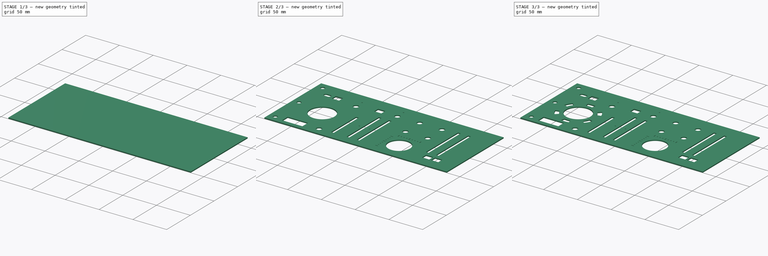
[diagram: build sequence overview — one tinted view per stage of 3, left to right]
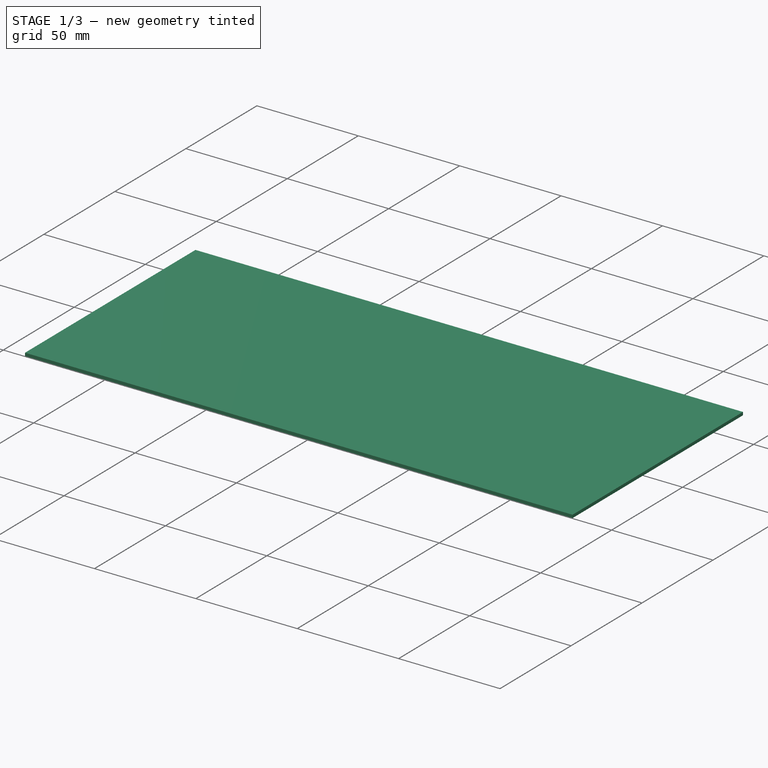
[diagram: stage 1 of 3 — iso view after this stage's code; geometry added in this stage tinted green]
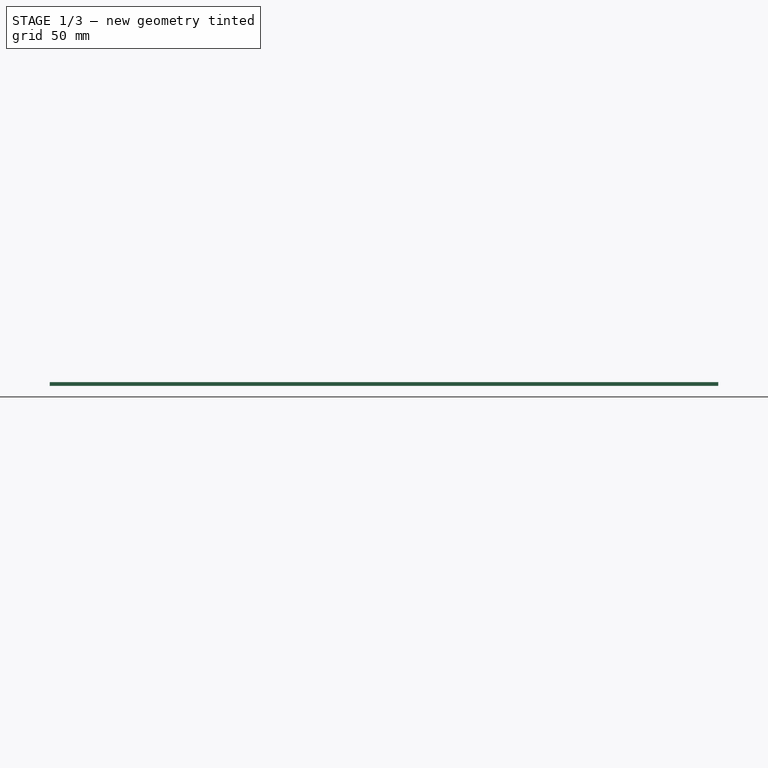
[diagram: stage 1 of 3 — front view after this stage's code; geometry added in this stage tinted green]
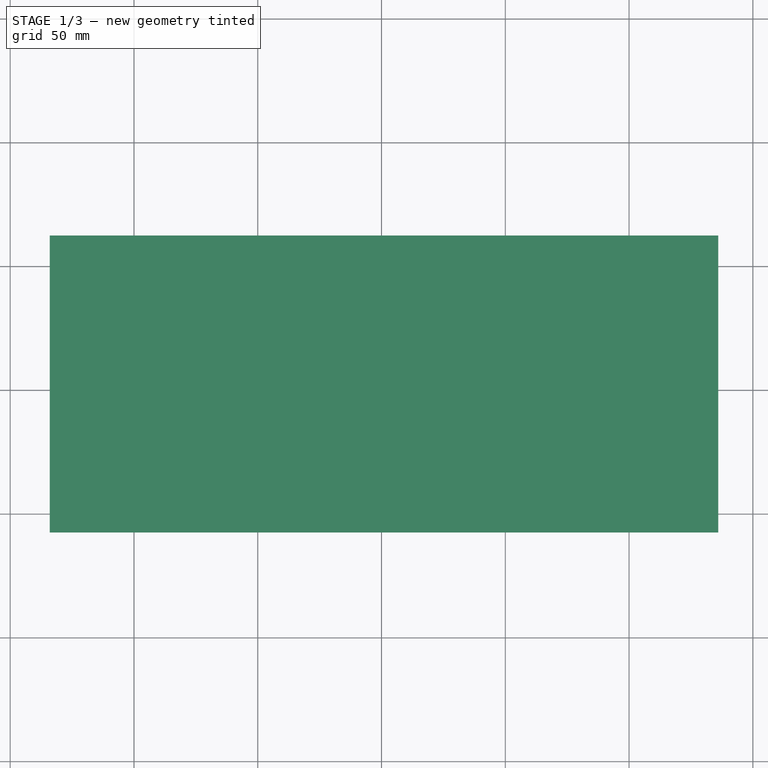
[diagram: stage 1 of 3 — top view after this stage's code; geometry added in this stage tinted green]
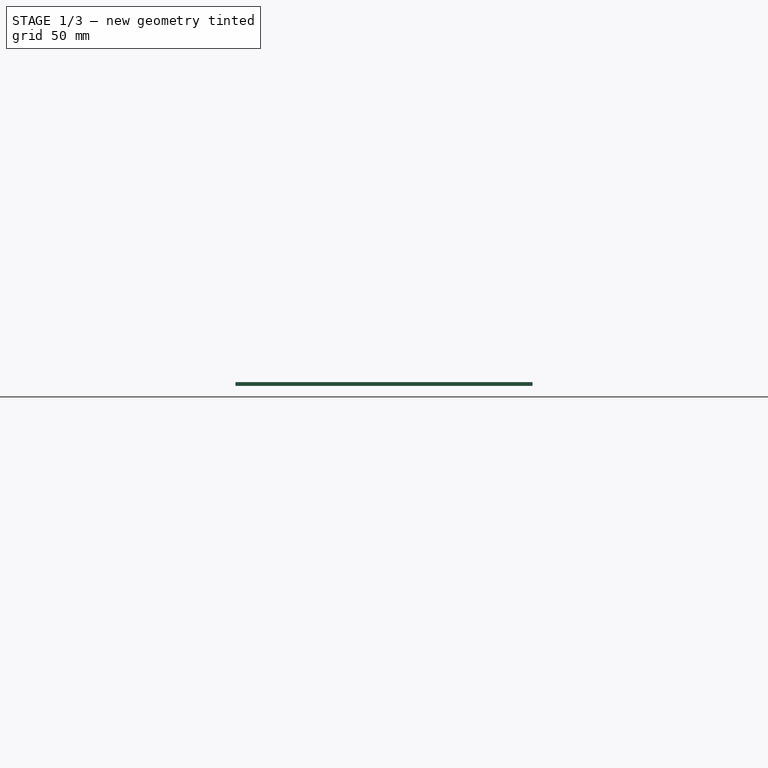
[diagram: stage 1 of 3 — right view after this stage's code; geometry added in this stage tinted green]
FCSTD DOCUMENT  (FreeCAD 0.18R16146 (Git))
Label: 2020LUM1PROGRACEV1_0
License: All rights reserved
LicenseURL: http://en.wikipedia.org/wiki/All_rights_reserved
objects: Sketcher::SketchObject×7, PartDesign::Pocket×3, PartDesign::Plane×2, PartDesign::Pad×2, PartDesign::Hole×1, PartDesign::CoordinateSystem×1, PartDesign::Line×1, PartDesign::PolarPattern×1, PartDesign::Body×1
note: 25 computed .brp shape members not serialized (recipe doc carries the construction recipe); baked Part::Feature solids carry a one-line shape summary decoded from their .brp

FEATURE [PartDesign::Plane] DatumPlane
  Length = 306
  MapMode = 2
  Placement = pos=(0,0,1.5) rot=(0,0,1;0rad)
  ResizeMode = 0
  Width = 156
FEATURE [Sketcher::SketchObject] Sketch
  MapMode = 5
  Placement = pos=(0,0,1.5) rot=(0,0,1;0rad)
  Support = -> [DatumPlane]
  sketch-geometry (4):
    g0: LineSegment StartX=-115 StartY=52.5 StartZ=0 EndX=115 EndY=52.5 EndZ=0
    g1: LineSegment StartX=115 StartY=52.5 StartZ=0 EndX=115 EndY=-52.5 EndZ=0
    g2: LineSegment StartX=115 StartY=-52.5 StartZ=0 EndX=-115 EndY=-52.5 EndZ=0
    g3: LineSegment StartX=-115 StartY=-52.5 StartZ=0 EndX=-115 EndY=52.5 EndZ=0
  constraints (11):
    c: Coincident(g0,g1)
    c: Coincident(g1,g2)
    c: Coincident(g2,g3)
    c: Coincident(g3,g0)
    c: Horizontal(g0)
    c: Horizontal(g2)
    c: Vertical(g1)
    c: Vertical(g3)
    c: DistanceY(g1,g1) = 105
    c: DistanceX(g0,g0) = 230
    c: Symmetric(g0,g1,g-1)
FEATURE [PartDesign::Pad] Pad  label="Platine"
  Length = 1.5
  Length2 = 100
  Placement = pos=(0,0,1.5) rot=(0,0,1;0rad)
  Profile = -> Sketch
  Reversed = true
  Type = 0
FEATURE [Sketcher::SketchObject] Sketch001
  ExternalGeometry = -> [Pad]
  MapMode = 5
  Support = -> [XY_Plane]
  sketch-geometry (4):
    g0: LineSegment StartX=-134 StartY=62.5 StartZ=0 EndX=136 EndY=62.5 EndZ=0
    g1: LineSegment StartX=136 StartY=62.5 StartZ=0 EndX=136 EndY=-57.5 EndZ=0
    g2: LineSegment StartX=136 StartY=-57.5 StartZ=0 EndX=-134 EndY=-57.5 EndZ=0
    g3: LineSegment StartX=-134 StartY=-57.5 StartZ=0 EndX=-134 EndY=62.5 EndZ=0
  constraints (11):
    c: Coincident(g0,g1)
    c: Coincident(g1,g2)
    c: Coincident(g2,g3)
    c: Coincident(g3,g0)
    c: Horizontal(g0)
    c: Horizontal(g2)
    c: Vertical(g1)
    c: Vertical(g3)
    c: DistanceX(g0,g-3) = 19
    c: DistanceX(g-3,g0) = 21
    c: DistanceY(g2,g-4) = 5
FEATURE [PartDesign::Pad] Pad001  label="Blech_plain"
  BaseFeature = -> Pad
  Length = 1.5
  Length2 = 100
  Placement = pos=(0,0,1.5) rot=(0,0,1;0rad)
  Profile = -> Sketch001
  Type = 0
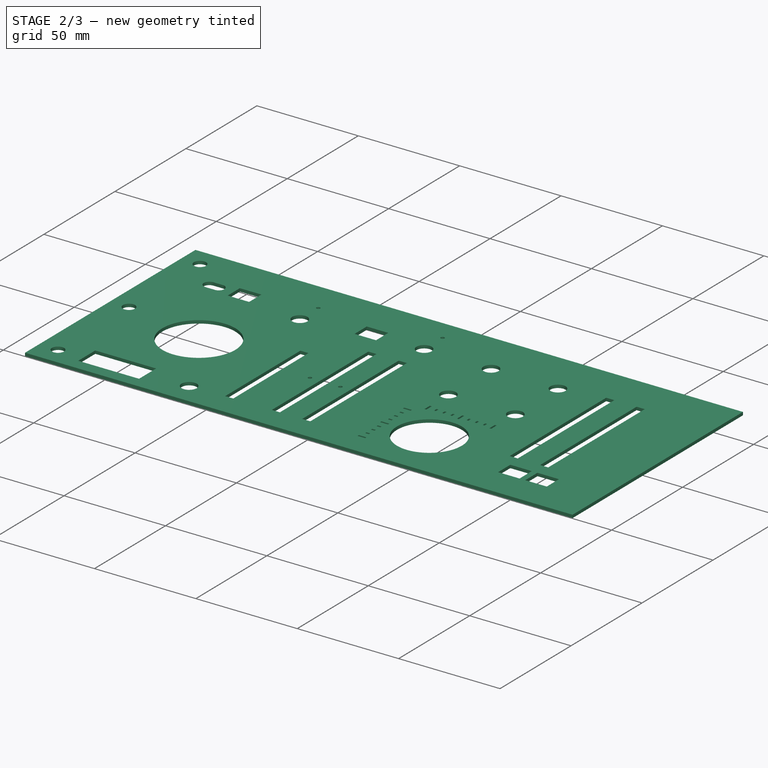
[diagram: stage 2 of 3 — iso view after this stage's code; geometry added in this stage tinted green]
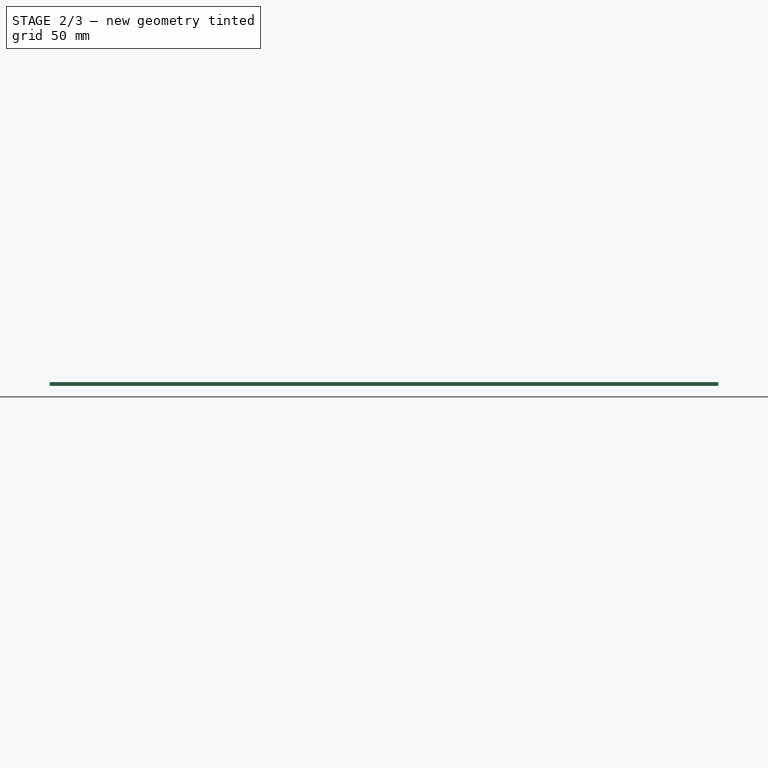
[diagram: stage 2 of 3 — front view after this stage's code; geometry added in this stage tinted green]
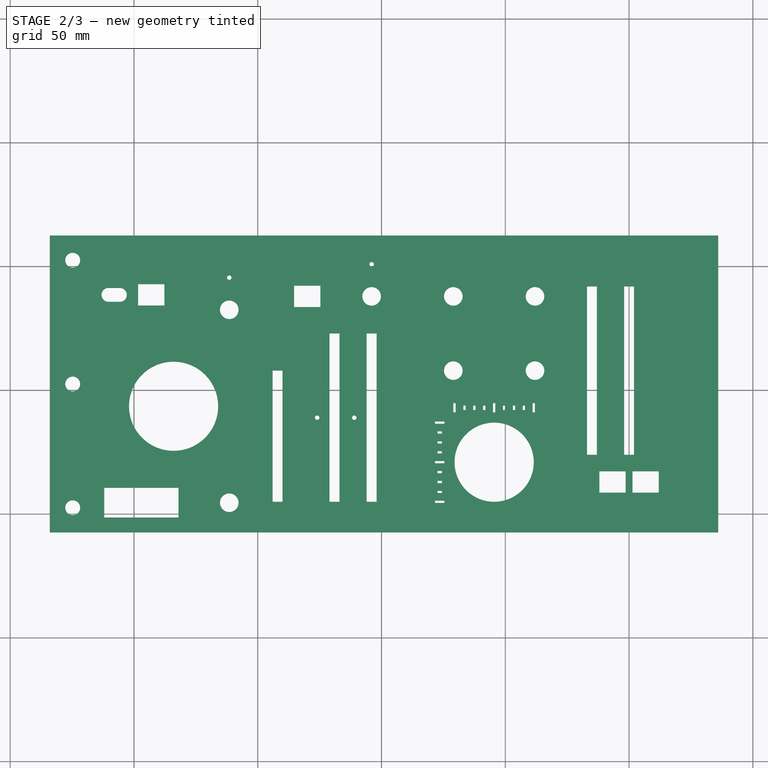
[diagram: stage 2 of 3 — top view after this stage's code; geometry added in this stage tinted green]
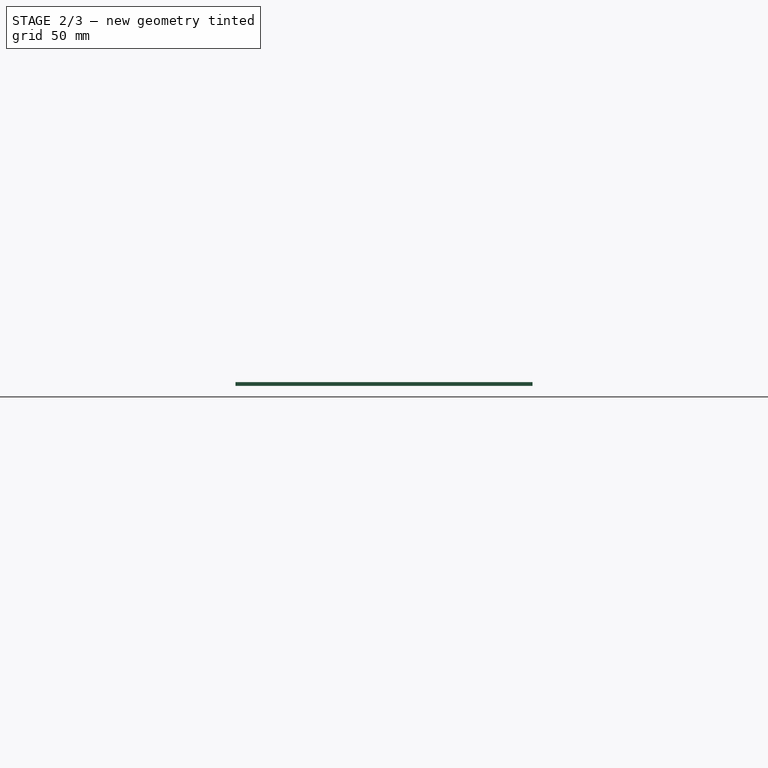
[diagram: stage 2 of 3 — right view after this stage's code; geometry added in this stage tinted green]
FEATURE [Sketcher::SketchObject] Sketch002
  ExternalGeometry = -> [Pad001]
  MapMode = 5
  Placement = pos=(0,0,1.5) rot=(0,0,1;0rad)
  Support = -> [Pad001]
  sketch-geometry (14):
    g0: Circle CenterX=-124.75 CenterY=52.5 CenterZ=0 NormalX=0 NormalY=0 NormalZ=1 AngleXU=0 Radius=3.25
    g1: Circle CenterX=-124.75 CenterY=2.5 CenterZ=0 NormalX=0 NormalY=0 NormalZ=1 AngleXU=0 Radius=3.25
    g2: Circle CenterX=-124.75 CenterY=-47.5 CenterZ=0 NormalX=0 NormalY=0 NormalZ=1 AngleXU=0 Radius=3.25
    g3: Circle CenterX=145.25 CenterY=52.5 CenterZ=0 NormalX=0 NormalY=0 NormalZ=1 AngleXU=0 Radius=3.25
    g4: Circle CenterX=145.25 CenterY=2.5 CenterZ=0 NormalX=0 NormalY=0 NormalZ=1 AngleXU=0 Radius=3.25
    g5: Circle CenterX=145.25 CenterY=-47.5 CenterZ=0 NormalX=0 NormalY=0 NormalZ=1 AngleXU=0 Radius=3.25
    g6: LineSegment [constr] StartX=-134 StartY=62.5 StartZ=0 EndX=-124.75 EndY=52.5 EndZ=0
    g7: LineSegment [constr] StartX=-124.75 StartY=52.5 StartZ=0 EndX=-124.75 EndY=2.5 EndZ=0
    g8: LineSegment [constr] StartX=-124.75 StartY=2.5 StartZ=0 EndX=-124.75 EndY=-47.5 EndZ=0
    g9: LineSegment [constr] StartX=-124.75 StartY=-47.5 StartZ=0 EndX=-134 EndY=-57.5 EndZ=0
    g10: LineSegment [constr] StartX=136 StartY=62.5 StartZ=0 EndX=145.25 EndY=52.5 EndZ=0
    g11: LineSegment [constr] StartX=145.25 StartY=52.5 StartZ=0 EndX=145.25 EndY=2.5 EndZ=0
    g12: LineSegment [constr] StartX=145.25 StartY=2.5 StartZ=0 EndX=145.25 EndY=-47.5 EndZ=0
    g13: LineSegment [constr] StartX=145.25 StartY=-47.5 StartZ=0 EndX=136 EndY=-57.5 EndZ=0
  constraints (34):
    c: Coincident(g6,g7)
    c: Vertical(g7)
    c: Coincident(g7,g8)
    c: Coincident(g8,g9)
    c: Coincident(g10,g11)
    c: Vertical(g11)
    c: Coincident(g11,g12)
    c: Vertical(g12)
    c: Coincident(g12,g13)
    c: Equal(g6,g9)
    c: Equal(g9,g10)
    c: Equal(g10,g13)
    c: Equal(g7,g8)
    c: Equal(g8,g11)
    c: Equal(g11,g12)
    c: Coincident(g6,g-3)
    c: Coincident(g9,g-3)
    c: Coincident(g10,g-4)
    c: Coincident(g13,g-4)
    c: Vertical(g8)
    c: Coincident(g0,g6)
    c: Coincident(g1,g7)
    c: Coincident(g2,g8)
    c: Coincident(g10,g3)
    c: Coincident(g4,g11)
    c: Coincident(g5,g12)
    c: Equal(g0,g1)
    c: Equal(g1,g2)
    c: Equal(g2,g3)
    c: Equal(g3,g4)
    c: Equal(g4,g5)
    c: Diameter(g0) = 6.5
    c: DistanceX(g6,g0) = 9.25
    c: DistanceY(g2,g0) = 100
FEATURE [PartDesign::Hole] Hole  label="Befestigungslöcher"
  BaseFeature = -> Pad001
  Depth = 25
  DepthType = 0
  Diameter = 6
  DrillPoint = 1
  DrillPointAngle = 118
  HoleCutCountersinkAngle = 90
  HoleCutDepth = 0
  HoleCutDiameter = 0
  HoleCutType = 0
  ModelActualThread = false
  Placement = pos=(0,0,1.5) rot=(0,0,1;0rad)
  Profile = -> Sketch002
  Tapered = false
  TaperedAngle = 90
  ThreadAngle = 0
  ThreadClass = 0
  ThreadCutOffInner = 0
  ThreadCutOffOuter = 0
  ThreadDirection = 0
  ThreadFit = 0
  ThreadPitch = 0
  ThreadSize = 0
  ThreadType = 0
  Threaded = false
FEATURE [Sketcher::SketchObject] Sketch003
  ExternalGeometry = -> [Hole]
  MapMode = 5
  Placement = pos=(0,0,1.5) rot=(0,0,1;0rad)
  Support = -> [Hole]
  sketch-geometry (88):
    g0: LineSegment StartX=-98.3 StartY=42.8 StartZ=0 EndX=-87.7 EndY=42.8 EndZ=0
    g1: LineSegment StartX=-87.7 StartY=42.8 StartZ=0 EndX=-87.7 EndY=34.2 EndZ=0
    g2: LineSegment StartX=-87.7 StartY=34.2 StartZ=0 EndX=-98.3 EndY=34.2 EndZ=0
    g3: LineSegment StartX=-98.3 StartY=34.2 StartZ=0 EndX=-98.3 EndY=42.8 EndZ=0
    g4: ArcOfCircle CenterX=-110.3 CenterY=38.5 CenterZ=0 NormalX=0 NormalY=0 NormalZ=1 AngleXU=0 Radius=2.8 StartAngle=1.5708 EndAngle=4.71239
    g5: ArcOfCircle CenterX=-105.7 CenterY=38.5 CenterZ=0 NormalX=0 NormalY=0 NormalZ=1 AngleXU=0 Radius=2.8 StartAngle=4.71239 EndAngle=7.85398
    g6: LineSegment StartX=-110.3 StartY=35.7 StartZ=0 EndX=-105.7 EndY=35.7 EndZ=0
    g7: LineSegment StartX=-110.3 StartY=41.3 StartZ=0 EndX=-105.7 EndY=41.3 EndZ=0
    g8: LineSegment [constr] StartX=-108 StartY=38.5 StartZ=0 EndX=-93 EndY=38.5 EndZ=0
    g9: Circle CenterX=-84 CenterY=-6.5 CenterZ=0 NormalX=0 NormalY=0 NormalZ=1 AngleXU=0 Radius=18
    g10: Circle CenterX=-61.5 CenterY=-45.4711 CenterZ=0 NormalX=0 NormalY=0 NormalZ=1 AngleXU=0 Radius=3.75
    g11: LineSegment StartX=-112 StartY=-39.4711 StartZ=0 EndX=-82 EndY=-39.4711 EndZ=0
    g12: LineSegment StartX=-82 StartY=-39.4711 StartZ=0 EndX=-82 EndY=-51.4711 EndZ=0
    g13: LineSegment StartX=-82 StartY=-51.4711 StartZ=0 EndX=-112 EndY=-51.4711 EndZ=0
    g14: LineSegment StartX=-112 StartY=-51.4711 StartZ=0 EndX=-112 EndY=-39.4711 EndZ=0
    g15: LineSegment [constr] StartX=-97 StartY=-45.4711 StartZ=0 EndX=-61.5 EndY=-45.4711 EndZ=0
    g16: LineSegment [constr] StartX=-84 StartY=-6.5 StartZ=0 EndX=-61.5 EndY=-45.4711 EndZ=0
    g17: LineSegment [constr] StartX=-84 StartY=-6.5 StartZ=0 EndX=-61.5 EndY=32.4711 EndZ=0
    g18: LineSegment [constr] StartX=-61.5 StartY=32.4711 StartZ=0 EndX=-61.5 EndY=-45.4711 EndZ=0
    g19: Circle CenterX=-61.5 CenterY=32.4711 CenterZ=0 NormalX=0 NormalY=0 NormalZ=1 AngleXU=0 Radius=3.75
    g20: Circle CenterX=-61.5 CenterY=45.4711 CenterZ=0 NormalX=0 NormalY=0 NormalZ=1 AngleXU=0 Radius=0.9
    g21: LineSegment [constr] StartX=-61.5 StartY=45.4711 StartZ=0 EndX=-61.5 EndY=32.4711 EndZ=0
    g22: LineSegment StartX=-44 StartY=7.9 StartZ=0 EndX=-40 EndY=7.9 EndZ=0
    g23: LineSegment StartX=-40 StartY=7.9 StartZ=0 EndX=-40 EndY=-45.1 EndZ=0
    g24: LineSegment StartX=-40 StartY=-45.1 StartZ=0 EndX=-44 EndY=-45.1 EndZ=0
    g25: LineSegment StartX=-44 StartY=-45.1 StartZ=0 EndX=-44 EndY=7.9 EndZ=0
    g26: LineSegment StartX=-21 StartY=22.9 StartZ=0 EndX=-17 EndY=22.9 EndZ=0
    g27: LineSegment StartX=-17 StartY=22.9 StartZ=0 EndX=-17 EndY=-45.1 EndZ=0
    g28: LineSegment StartX=-17 StartY=-45.1 StartZ=0 EndX=-21 EndY=-45.1 EndZ=0
    g29: LineSegment StartX=-21 StartY=-45.1 StartZ=0 EndX=-21 EndY=22.9 EndZ=0
    g30: LineSegment StartX=-6 StartY=22.9 StartZ=0 EndX=-2 EndY=22.9 EndZ=0
    g31: LineSegment StartX=-2 StartY=22.9 StartZ=0 EndX=-2 EndY=-45.1 EndZ=0
    g32: LineSegment StartX=-2 StartY=-45.1 StartZ=0 EndX=-6 EndY=-45.1 EndZ=0
    g33: LineSegment StartX=-6 StartY=-45.1 StartZ=0 EndX=-6 EndY=22.9 EndZ=0
    g34: LineSegment [constr] StartX=-26 StartY=-11.1 StartZ=0 EndX=-19 EndY=-11.1 EndZ=0
    g35: LineSegment [constr] StartX=-19 StartY=-11.1 StartZ=0 EndX=-11 EndY=-11.1 EndZ=0
    g36: LineSegment [constr] StartX=-11 StartY=-11.1 StartZ=0 EndX=-4 EndY=-11.1 EndZ=0
    g37: Circle CenterX=-26 CenterY=-11.1 CenterZ=0 NormalX=0 NormalY=0 NormalZ=1 AngleXU=0 Radius=0.9
    g38: Circle CenterX=-11 CenterY=-11.1 CenterZ=0 NormalX=0 NormalY=0 NormalZ=1 AngleXU=0 Radius=0.9
    g39: GeomPoint X=-42 Y=-18.6 Z=0
    g40: LineSegment [constr] StartX=-21 StartY=-45.1 StartZ=0 EndX=-40 EndY=-45.1 EndZ=0
    g41: Circle CenterX=-4 CenterY=37.9 CenterZ=0 NormalX=0 NormalY=0 NormalZ=1 AngleXU=0 Radius=3.75
    g42: GeomPoint X=-30 Y=37.9 Z=0
    g43: LineSegment StartX=-35.3 StartY=42.2 StartZ=0 EndX=-24.7 EndY=42.2 EndZ=0
    g44: LineSegment StartX=-24.7 StartY=42.2 StartZ=0 EndX=-24.7 EndY=33.6 EndZ=0
    g45: LineSegment StartX=-24.7 StartY=33.6 StartZ=0 EndX=-35.3 EndY=33.6 EndZ=0
    g46: LineSegment StartX=-35.3 StartY=33.6 StartZ=0 EndX=-35.3 EndY=42.2 EndZ=0
    g47: Circle CenterX=-4 CenterY=50.9 CenterZ=0 NormalX=0 NormalY=0 NormalZ=1 AngleXU=0 Radius=0.9
    g48: LineSegment [constr] StartX=-4 StartY=-11.1 StartZ=0 EndX=-4 EndY=37.9 EndZ=0
    g49: LineSegment [constr] StartX=-4 StartY=37.9 StartZ=0 EndX=-4 EndY=50.9 EndZ=0
    g50: LineSegment [constr] StartX=-4 StartY=37.9 StartZ=0 EndX=-30 EndY=37.9 EndZ=0
    g51: LineSegment [constr] StartX=-4 StartY=37.9 StartZ=0 EndX=29 EndY=37.9 EndZ=0
    g52: LineSegment [constr] StartX=29 StartY=37.9 StartZ=0 EndX=62 EndY=37.9 EndZ=0
    g53: LineSegment [constr] StartX=62 StartY=37.9 StartZ=0 EndX=62 EndY=7.9 EndZ=0
    g54: LineSegment [constr] StartX=62 StartY=7.9 StartZ=0 EndX=29 EndY=7.9 EndZ=0
    g55: LineSegment [constr] StartX=29 StartY=7.9 StartZ=0 EndX=29 EndY=37.9 EndZ=0
    g56: LineSegment [constr] StartX=45.5 StartY=7.9 StartZ=0 EndX=45.5 EndY=-29.1 EndZ=0
    g57: Circle CenterX=29 CenterY=37.9 CenterZ=0 NormalX=0 NormalY=0 NormalZ=1 AngleXU=0 Radius=3.75
    g58: Circle CenterX=62 CenterY=37.9 CenterZ=0 NormalX=0 NormalY=0 NormalZ=1 AngleXU=0 Radius=3.75
    g59: Circle CenterX=29 CenterY=7.9 CenterZ=0 NormalX=0 NormalY=0 NormalZ=1 AngleXU=0 Radius=3.75
    g60: Circle CenterX=62 CenterY=7.9 CenterZ=0 NormalX=0 NormalY=0 NormalZ=1 AngleXU=0 Radius=3.75
    g61: Circle CenterX=45.5 CenterY=-29.1 CenterZ=0 NormalX=0 NormalY=0 NormalZ=1 AngleXU=0 Radius=16
    g62: LineSegment StartX=83 StartY=41.9 StartZ=0 EndX=87 EndY=41.9 EndZ=0
    g63: LineSegment StartX=87 StartY=41.9 StartZ=0 EndX=87 EndY=-26.1 EndZ=0
    g64: LineSegment StartX=87 StartY=-26.1 StartZ=0 EndX=83 EndY=-26.1 EndZ=0
    g65: LineSegment StartX=83 StartY=-26.1 StartZ=0 EndX=83 EndY=41.9 EndZ=0
    g66: LineSegment StartX=98 StartY=41.9 StartZ=0 EndX=102 EndY=41.9 EndZ=0
    g67: LineSegment StartX=102 StartY=41.9 StartZ=0 EndX=102 EndY=-26.1 EndZ=0
    g68: LineSegment StartX=102 StartY=-26.1 StartZ=0 EndX=98 EndY=-26.1 EndZ=0
    g69: LineSegment StartX=98 StartY=-26.1 StartZ=0 EndX=98 EndY=41.9 EndZ=0
    g70: LineSegment StartX=88 StartY=-32.8 StartZ=0 EndX=98.6 EndY=-32.8 EndZ=0
    g71: LineSegment StartX=98.6 StartY=-32.8 StartZ=0 EndX=98.6 EndY=-41.4 EndZ=0
    g72: LineSegment StartX=98.6 StartY=-41.4 StartZ=0 EndX=88 EndY=-41.4 EndZ=0
    g73: LineSegment StartX=88 StartY=-41.4 StartZ=0 EndX=88 EndY=-32.8 EndZ=0
    g74: LineSegment StartX=101.4 StartY=-32.8 StartZ=0 EndX=112 EndY=-32.8 EndZ=0
    g75: LineSegment StartX=112 StartY=-32.8 StartZ=0 EndX=112 EndY=-41.4 EndZ=0
    g76: LineSegment StartX=112 StartY=-41.4 StartZ=0 EndX=101.4 EndY=-41.4 EndZ=0
    g77: LineSegment StartX=101.4 StartY=-41.4 StartZ=0 EndX=101.4 EndY=-32.8 EndZ=0
    g78: GeomPoint X=85 Y=7.9 Z=0
    g79: GeomPoint X=100 Y=7.9 Z=0
    g80: GeomPoint X=93.3 Y=-37.1 Z=0
    g81: GeomPoint X=106.7 Y=-37.1 Z=0
    g82: LineSegment [constr] StartX=100 StartY=7.9 StartZ=0 EndX=100 EndY=-37.1 EndZ=0
    g83: LineSegment [constr] StartX=106.7 StartY=-37.1 StartZ=0 EndX=100 EndY=-37.1 EndZ=0
    g84: LineSegment [constr] StartX=100 StartY=-37.1 StartZ=0 EndX=93.3 EndY=-37.1 EndZ=0
    g85: LineSegment [constr] StartX=100 StartY=7.9 StartZ=0 EndX=85 EndY=7.9 EndZ=0
    g86: LineSegment [constr] StartX=62 StartY=7.9 StartZ=0 EndX=85 EndY=7.9 EndZ=0
    g87: LineSegment [constr] StartX=-19 StartY=-11.1 StartZ=0 EndX=-4 EndY=-11.1 EndZ=0
  constraints (227):
    c: Coincident(g0,g1)
    c: Coincident(g1,g2)
    c: Coincident(g2,g3)
    c: Coincident(g3,g0)
    c: Horizontal(g0)
    c: Horizontal(g2)
    c: Vertical(g1)
    c: Vertical(g3)
    c: Tangent(g4,g7) = 1.5708
    c: Tangent(g4,g6) = -1.5708
    c: Tangent(g6,g5) = -1.5708
    c: Tangent(g7,g5) = 1.5708
    c: Horizontal(g6)
    c: Equal(g4,g5)
    c: Horizontal(g8)
    c: Symmetric(g0,g1,g8)
    c: DistanceX(g8,g8) = 15
    c: DistanceX(g7,g7) = 4.6
    c: DistanceY(g4,g4) = 5.6
    c: Symmetric(g4,g5,g8)
    c: DistanceY(g1,g1) = 8.6
    c: DistanceX(g0,g0) = 10.6
    c: DistanceX(g-3,g8) = 22
    c: DistanceY(g8,g-3) = 14
    c: Coincident(g11,g12)
    c: Coincident(g12,g13)
    c: Coincident(g13,g14)
    c: Coincident(g14,g11)
    c: Horizontal(g11)
    c: Horizontal(g13)
    c: Vertical(g12)
    c: Vertical(g14)
    c: Horizontal(g15)
    c: Coincident(g10,g15)
    c: Symmetric(g11,g12,g15)
    c: DistanceX(g-3,g15) = 18
    c: DistanceX(g13,g13) = 30
    c: DistanceY(g12,g12) = 12
    c: Coincident(g17,g9)
    c: Coincident(g16,g9)
    c: Coincident(g10,g16)
    c: Equal(g17,g16)
    c: Coincident(g18,g17)
    c: Coincident(g18,g10)
    c: Vertical(g18)
    c: Angle(g16,g-1) = 1.0472
    c: Distance(g16) = 45
    c: DistanceY(g9,g-3) = 59
    c: DistanceX(g-3,g9) = 31
    c: Diameter(g10) = 7.5
    c: Diameter(g9) = 36
    c: Coincident(g19,g17)
    c: Vertical(g21)
    c: Coincident(g21,g19)
    c: Coincident(g20,g21)
    c: Diameter(g20) = 1.8
    c: Equal(g19,g10)
    c: DistanceY(g21,g21) = 13
    c: Coincident(g22,g23)
    c: Coincident(g23,g24)
    c: Coincident(g24,g25)
    c: Coincident(g25,g22)
    c: Horizontal(g22)
    c: Horizontal(g24)
    c: Vertical(g23)
    c: Vertical(g25)
    c: Coincident(g26,g27)
    c: Coincident(g27,g28)
    c: Coincident(g28,g29)
    c: Coincident(g29,g26)
    c: Horizontal(g26)
    c: Horizontal(g28)
    c: Vertical(g27)
    c: Vertical(g29)
    c: Coincident(g30,g31)
    c: Coincident(g31,g32)
    c: Coincident(g32,g33)
    c: Coincident(g33,g30)
    c: Horizontal(g30)
    c: Horizontal(g32)
    c: Vertical(g31)
    c: Vertical(g33)
    c: Equal(g30,g26)
    c: Equal(g26,g22)
    c: Equal(g27,g31)
    c: DistanceY(g31,g31) = 68
    c: DistanceY(g23,g23) = 53
    c: DistanceX(g30,g30) = 4
    c: Horizontal(g34)
    c: Coincident(g34,g35)
    c: Horizontal(g35)
    c: Coincident(g35,g36)
    c: Horizontal(g36)
    c: Symmetric(g26,g27,g34)
    c: Symmetric(g30,g31,g36)
    c: DistanceX(g9,g34) = 65
    c: Equal(g38,g37)
    c: Equal(g37,g20)
    c: DistanceX(g36,g36) = 7
    c: Coincident(g38,g35)
    c: Coincident(g37,g34)
    c: Equal(g36,g34)
    c: DistanceY(g37,g9) = 4.6
    c: Symmetric(g22,g23,g39)
    c: Coincident(g40,g28)
    c: Horizontal(g40)
    c: Coincident(g23,g40)
    c: DistanceX(g9,g39) = 42
    c: Coincident(g43,g44)
    c: Coincident(g44,g45)
    c: Coincident(g45,g46)
    c: Coincident(g46,g43)
    c: Horizontal(g43)
    c: Horizontal(g45)
    c: Vertical(g44)
    c: Vertical(g46)
    c: Symmetric(g43,g44,g42)
    c: DistanceY(g36,g41) = 49
    c: Coincident(g48,g36)
    c: Vertical(g48)
    c: Vertical(g49)
    c: Coincident(g49,g47)
    c: Coincident(g49,g41)
    c: Coincident(g48,g41)
    c: Equal(g49,g21)
    c: Equal(g41,g19)
    c: Equal(g20,g47)
    c: Equal(g43,g0)
    c: Equal(g44,g1)
    c: Horizontal(g50)
    c: Coincident(g50,g41)
    c: Coincident(g50,g42)
    c: DistanceX(g50,g50) = 26
    c: Coincident(g51,g41)
    c: Horizontal(g51)
    c: Coincident(g51,g52)
    c: Horizontal(g52)
    c: Coincident(g52,g53)
    c: Vertical(g53)
    c: Coincident(g53,g54)
    c: Horizontal(g54)
    c: Coincident(g54,g55)
    c: Coincident(g55,g52)
    c: Vertical(g55)
    c: Vertical(g56)
    c: Symmetric(g54,g53,g56)
    c: DistanceY(g56,g56) = 37
    c: Equal(g60,g57)
    c: Equal(g57,g59)
    c: Equal(g59,g58)
    c: Equal(g58,g41)
    c: Coincident(g57,g51)
    c: Coincident(g59,g54)
    c: Coincident(g58,g52)
    c: Coincident(g60,g53)
    c: DistanceX(g52,g52) = 33
    c: DistanceY(g53,g53) = 30
    c: Coincident(g61,g56)
    c: Diameter(g61) = 32
    c: Coincident(g62,g63)
    c: Coincident(g63,g64)
    c: Coincident(g64,g65)
    c: Coincident(g65,g62)
    c: Horizontal(g62)
    c: Horizontal(g64)
    c: Vertical(g63)
    c: Vertical(g65)
    c: Coincident(g66,g67)
    c: Coincident(g67,g68)
    c: Coincident(g68,g69)
    c: Coincident(g69,g66)
    c: Horizontal(g66)
    c: Horizontal(g68)
    c: Vertical(g67)
    c: Vertical(g69)
    c: Coincident(g70,g71)
    c: Coincident(g71,g72)
    c: Coincident(g72,g73)
    c: Coincident(g73,g70)
    c: Horizontal(g70)
    c: Horizontal(g72)
    c: Vertical(g71)
    c: Vertical(g73)
    c: Coincident(g74,g75)
    c: Coincident(g75,g76)
    c: Coincident(g76,g77)
    c: Coincident(g77,g74)
    c: Horizontal(g74)
    c: Horizontal(g76)
    c: Vertical(g75)
    c: Vertical(g77)
    c: Equal(g74,g70)
    c: Equal(g70,g43)
    c: Equal(g26,g30)
    c: Equal(g30,g62)
    c: Equal(g62,g66)
    c: Equal(g63,g67)
    c: Equal(g67,g31)
    c: Equal(g71,g75)
    c: Equal(g75,g44)
    c: Symmetric(g70,g71,g80)
    c: Symmetric(g75,g74,g81)
    c: Symmetric(g62,g63,g78)
    c: Symmetric(g66,g67,g79)
    c: Vertical(g82)
    c: Coincident(g83,g82)
    c: Coincident(g83,g84)
    c: Horizontal(g84)
    c: Horizontal(g83)
    c: Equal(g83,g84)
    c: Coincident(g85,g82)
    c: Horizontal(g85)
    c: Coincident(g85,g78)
    c: Coincident(g83,g81)
    c: Coincident(g80,g84)
    c: DistanceX(g80,g81) = 13.4
    c: Horizontal(g86)
    c: Coincident(g86,g60)
    c: Coincident(g86,g78)
    c: Coincident(g79,g82)
    c: Equal(g87,g85)
    c: Coincident(g87,g36)
    c: Coincident(g87,g34)
    c: DistanceX(g85,g85) = 15
    c: DistanceY(g82,g79) = 45
    c: DistanceX(g58,g78) = 23
    c: DistanceX(g51,g51) = 33
FEATURE [PartDesign::Pocket] Pocket  label="Aussparung"
  BaseFeature = -> Hole
  Length = 5
  Length2 = 100
  Placement = pos=(0,0,1.5) rot=(0,0,1;0rad)
  Profile = -> Sketch003
  Type = 0
FEATURE [Sketcher::SketchObject] Sketch004
  ExternalGeometry = -> [Pocket]
  MapMode = 5
  Placement = pos=(0,0,1.5) rot=(0,0,1;0rad)
  Support = -> [Pocket]
  sketch-geometry (90):
    g0: LineSegment [constr] StartX=29.5 StartY=-7.1 StartZ=0 EndX=33.5 EndY=-7.1 EndZ=0
    g1: LineSegment [constr] StartX=33.5 StartY=-7.1 StartZ=0 EndX=37.5 EndY=-7.1 EndZ=0
    g2: LineSegment [constr] StartX=37.5 StartY=-7.1 StartZ=0 EndX=41.5 EndY=-7.1 EndZ=0
    g3: LineSegment [constr] StartX=41.5 StartY=-7.1 StartZ=0 EndX=45.5 EndY=-7.1 EndZ=0
    g4: LineSegment [constr] StartX=45.5 StartY=-7.1 StartZ=0 EndX=49.5 EndY=-7.1 EndZ=0
    g5: LineSegment [constr] StartX=49.5 StartY=-7.1 StartZ=0 EndX=53.5 EndY=-7.1 EndZ=0
    g6: LineSegment [constr] StartX=53.5 StartY=-7.1 StartZ=0 EndX=57.5 EndY=-7.1 EndZ=0
    g7: LineSegment [constr] StartX=23.5 StartY=-13.1 StartZ=0 EndX=23.5 EndY=-17.1 EndZ=0
    g8: LineSegment [constr] StartX=23.5 StartY=-17.1 StartZ=0 EndX=23.5 EndY=-21.1 EndZ=0
    g9: LineSegment [constr] StartX=23.5 StartY=-21.1 StartZ=0 EndX=23.5 EndY=-25.1 EndZ=0
    g10: LineSegment [constr] StartX=23.5 StartY=-25.1 StartZ=0 EndX=23.5 EndY=-29.1 EndZ=0
    g11: LineSegment [constr] StartX=23.5 StartY=-29.1 StartZ=0 EndX=23.5 EndY=-33.1 EndZ=0
    g12: LineSegment [constr] StartX=23.5 StartY=-33.1 StartZ=0 EndX=23.5 EndY=-37.1 EndZ=0
    g13: LineSegment [constr] StartX=23.5 StartY=-37.1 StartZ=0 EndX=23.5 EndY=-41.1 EndZ=0
    g14: LineSegment [constr] StartX=23.5 StartY=-41.1 StartZ=0 EndX=23.5 EndY=-45.1 EndZ=0
    g15: LineSegment [constr] StartX=57.5 StartY=-7.1 StartZ=0 EndX=61.5 EndY=-7.1 EndZ=0
    g16: LineSegment [constr] StartX=45.5 StartY=-7.1 StartZ=0 EndX=45.5 EndY=-29.1 EndZ=0
    g17: LineSegment [constr] StartX=45.5 StartY=-29.1 StartZ=0 EndX=23.5 EndY=-29.1 EndZ=0
    g18: LineSegment StartX=29.05 StartY=-5.2 StartZ=0 EndX=29.95 EndY=-5.2 EndZ=0
    g19: LineSegment StartX=29.95 StartY=-5.2 StartZ=0 EndX=29.95 EndY=-9 EndZ=0
    g20: LineSegment StartX=29.95 StartY=-9 StartZ=0 EndX=29.05 EndY=-9 EndZ=0
    g21: LineSegment StartX=29.05 StartY=-9 StartZ=0 EndX=29.05 EndY=-5.2 EndZ=0
    g22: LineSegment StartX=45.05 StartY=-5.2 StartZ=0 EndX=45.95 EndY=-5.2 EndZ=0
    g23: LineSegment StartX=45.95 StartY=-5.2 StartZ=0 EndX=45.95 EndY=-9 EndZ=0
    g24: LineSegment StartX=45.95 StartY=-9 StartZ=0 EndX=45.05 EndY=-9 EndZ=0
    g25: LineSegment StartX=45.05 StartY=-9 StartZ=0 EndX=45.05 EndY=-5.2 EndZ=0
    g26: LineSegment StartX=61.05 StartY=-5.2 StartZ=0 EndX=61.95 EndY=-5.2 EndZ=0
    g27: LineSegment StartX=61.95 StartY=-5.2 StartZ=0 EndX=61.95 EndY=-9 EndZ=0
    g28: LineSegment StartX=61.95 StartY=-9 StartZ=0 EndX=61.05 EndY=-9 EndZ=0
    g29: LineSegment StartX=61.05 StartY=-9 StartZ=0 EndX=61.05 EndY=-5.2 EndZ=0
    g30: LineSegment StartX=21.6 StartY=-12.65 StartZ=0 EndX=25.4 EndY=-12.65 EndZ=0
    g31: LineSegment StartX=25.4 StartY=-12.65 StartZ=0 EndX=25.4 EndY=-13.55 EndZ=0
    g32: LineSegment StartX=25.4 StartY=-13.55 StartZ=0 EndX=21.6 EndY=-13.55 EndZ=0
    g33: LineSegment StartX=21.6 StartY=-13.55 StartZ=0 EndX=21.6 EndY=-12.65 EndZ=0
    g34: LineSegment StartX=21.6 StartY=-28.65 StartZ=0 EndX=25.4 EndY=-28.65 EndZ=0
    g35: LineSegment StartX=25.4 StartY=-28.65 StartZ=0 EndX=25.4 EndY=-29.55 EndZ=0
    g36: LineSegment StartX=25.4 StartY=-29.55 StartZ=0 EndX=21.6 EndY=-29.55 EndZ=0
    g37: LineSegment StartX=21.6 StartY=-29.55 StartZ=0 EndX=21.6 EndY=-28.65 EndZ=0
    g38: LineSegment StartX=21.6 StartY=-44.65 StartZ=0 EndX=25.4 EndY=-44.65 EndZ=0
    g39: LineSegment StartX=25.4 StartY=-44.65 StartZ=0 EndX=25.4 EndY=-45.55 EndZ=0
    g40: LineSegment StartX=25.4 StartY=-45.55 StartZ=0 EndX=21.6 EndY=-45.55 EndZ=0
    g41: LineSegment StartX=21.6 StartY=-45.55 StartZ=0 EndX=21.6 EndY=-44.65 EndZ=0
    g42: LineSegment StartX=33.05 StartY=-6.2 StartZ=0 EndX=33.95 EndY=-6.2 EndZ=0
    g43: LineSegment StartX=33.95 StartY=-6.2 StartZ=0 EndX=33.95 EndY=-8 EndZ=0
    g44: LineSegment StartX=33.95 StartY=-8 StartZ=0 EndX=33.05 EndY=-8 EndZ=0
    g45: LineSegment StartX=33.05 StartY=-8 StartZ=0 EndX=33.05 EndY=-6.2 EndZ=0
    g46: LineSegment StartX=37.05 StartY=-6.2 StartZ=0 EndX=37.95 EndY=-6.2 EndZ=0
    g47: LineSegment StartX=37.95 StartY=-6.2 StartZ=0 EndX=37.95 EndY=-8 EndZ=0
    g48: LineSegment StartX=37.95 StartY=-8 StartZ=0 EndX=37.05 EndY=-8 EndZ=0
    g49: LineSegment StartX=37.05 StartY=-8 StartZ=0 EndX=37.05 EndY=-6.2 EndZ=0
    g50: LineSegment StartX=41.05 StartY=-6.2 StartZ=0 EndX=41.95 EndY=-6.2 EndZ=0
    g51: LineSegment StartX=41.95 StartY=-6.2 StartZ=0 EndX=41.95 EndY=-8 EndZ=0
    g52: LineSegment StartX=41.95 StartY=-8 StartZ=0 EndX=41.05 EndY=-8 EndZ=0
    g53: LineSegment StartX=41.05 StartY=-8 StartZ=0 EndX=41.05 EndY=-6.2 EndZ=0
    g54: LineSegment StartX=49.05 StartY=-6.2 StartZ=0 EndX=49.95 EndY=-6.2 EndZ=0
    g55: LineSegment StartX=49.95 StartY=-6.2 StartZ=0 EndX=49.95 EndY=-8 EndZ=0
    g56: LineSegment StartX=49.95 StartY=-8 StartZ=0 EndX=49.05 EndY=-8 EndZ=0
    g57: LineSegment StartX=49.05 StartY=-8 StartZ=0 EndX=49.05 EndY=-6.2 EndZ=0
    g58: LineSegment StartX=53.05 StartY=-6.2 StartZ=0 EndX=53.95 EndY=-6.2 EndZ=0
    g59: LineSegment StartX=53.95 StartY=-6.2 StartZ=0 EndX=53.95 EndY=-8 EndZ=0
    g60: LineSegment StartX=53.95 StartY=-8 StartZ=0 EndX=53.05 EndY=-8 EndZ=0
    g61: LineSegment StartX=53.05 StartY=-8 StartZ=0 EndX=53.05 EndY=-6.2 EndZ=0
    g62: LineSegment StartX=57.05 StartY=-6.2 StartZ=0 EndX=57.95 EndY=-6.2 EndZ=0
    g63: LineSegment StartX=57.95 StartY=-6.2 StartZ=0 EndX=57.95 EndY=-8 EndZ=0
    g64: LineSegment StartX=57.95 StartY=-8 StartZ=0 EndX=57.05 EndY=-8 EndZ=0
    g65: LineSegment StartX=57.05 StartY=-8 StartZ=0 EndX=57.05 EndY=-6.2 EndZ=0
    g66: LineSegment StartX=22.6 StartY=-16.65 StartZ=0 EndX=24.4 EndY=-16.65 EndZ=0
    g67: LineSegment StartX=24.4 StartY=-16.65 StartZ=0 EndX=24.4 EndY=-17.55 EndZ=0
    g68: LineSegment StartX=24.4 StartY=-17.55 StartZ=0 EndX=22.6 EndY=-17.55 EndZ=0
    g69: LineSegment StartX=22.6 StartY=-17.55 StartZ=0 EndX=22.6 EndY=-16.65 EndZ=0
    g70: LineSegment StartX=22.6 StartY=-20.65 StartZ=0 EndX=24.4 EndY=-20.65 EndZ=0
    g71: LineSegment StartX=24.4 StartY=-20.65 StartZ=0 EndX=24.4 EndY=-21.55 EndZ=0
    g72: LineSegment StartX=24.4 StartY=-21.55 StartZ=0 EndX=22.6 EndY=-21.55 EndZ=0
    g73: LineSegment StartX=22.6 StartY=-21.55 StartZ=0 EndX=22.6 EndY=-20.65 EndZ=0
    g74: LineSegment StartX=22.6 StartY=-24.65 StartZ=0 EndX=24.4 EndY=-24.65 EndZ=0
    g75: LineSegment StartX=24.4 StartY=-24.65 StartZ=0 EndX=24.4 EndY=-25.55 EndZ=0
    g76: LineSegment StartX=24.4 StartY=-25.55 StartZ=0 EndX=22.6 EndY=-25.55 EndZ=0
    g77: LineSegment StartX=22.6 StartY=-25.55 StartZ=0 EndX=22.6 EndY=-24.65 EndZ=0
    g78: LineSegment StartX=22.6 StartY=-32.65 StartZ=0 EndX=24.4 EndY=-32.65 EndZ=0
    g79: LineSegment StartX=24.4 StartY=-32.65 StartZ=0 EndX=24.4 EndY=-33.55 EndZ=0
    g80: LineSegment StartX=24.4 StartY=-33.55 StartZ=0 EndX=22.6 EndY=-33.55 EndZ=0
    g81: LineSegment StartX=22.6 StartY=-33.55 StartZ=0 EndX=22.6 EndY=-32.65 EndZ=0
    g82: LineSegment StartX=22.6 StartY=-36.65 StartZ=0 EndX=24.4 EndY=-36.65 EndZ=0
    g83: LineSegment StartX=24.4 StartY=-36.65 StartZ=0 EndX=24.4 EndY=-37.55 EndZ=0
    g84: LineSegment StartX=24.4 StartY=-37.55 StartZ=0 EndX=22.6 EndY=-37.55 EndZ=0
    g85: LineSegment StartX=22.6 StartY=-37.55 StartZ=0 EndX=22.6 EndY=-36.65 EndZ=0
    g86: LineSegment StartX=22.6 StartY=-40.65 StartZ=0 EndX=24.4 EndY=-40.65 EndZ=0
    g87: LineSegment StartX=24.4 StartY=-40.65 StartZ=0 EndX=24.4 EndY=-41.55 EndZ=0
    g88: LineSegment StartX=24.4 StartY=-41.55 StartZ=0 EndX=22.6 EndY=-41.55 EndZ=0
    g89: LineSegment StartX=22.6 StartY=-41.55 StartZ=0 EndX=22.6 EndY=-40.65 EndZ=0
  constraints (252):
    c: Horizontal(g0)
    c: Coincident(g0,g1)
    c: Horizontal(g1)
    c: Coincident(g1,g2)
    c: Horizontal(g2)
    c: Coincident(g2,g3)
    c: Horizontal(g3)
    c: Coincident(g3,g4)
    c: Coincident(g4,g5)
    c: Horizontal(g5)
    c: Coincident(g5,g6)
    c: Horizontal(g6)
    c: Vertical(g7)
    c: Coincident(g7,g8)
    c: Vertical(g8)
    c: Coincident(g8,g9)
    c: Coincident(g9,g10)
    c: Coincident(g10,g11)
    c: Coincident(g11,g12)
    c: Coincident(g12,g13)
    c: Vertical(g13)
    c: Coincident(g13,g14)
    c: Equal(g6,g5)
    c: Equal(g5,g4)
    c: Equal(g4,g3)
    c: Equal(g3,g2)
    c: Equal(g2,g1)
    c: Equal(g1,g0)
    c: Equal(g0,g7)
    c: Equal(g7,g8)
    c: Equal(g8,g9)
    c: Equal(g9,g10)
    c: Equal(g10,g11)
    c: Equal(g11,g12)
    c: Equal(g12,g13)
    c: Equal(g13,g14)
    c: Vertical(g9)
    c: Vertical(g10)
    c: Vertical(g11)
    c: Vertical(g14)
    c: Vertical(g12)
    c: DistanceX(g0,g0) = 4
    c: Horizontal(g4)
    c: Coincident(g6,g15)
    c: Horizontal(g15)
    c: Equal(g6,g15)
    c: Coincident(g3,g16)
    c: Vertical(g16)
    c: Coincident(g16,g17)
    c: Horizontal(g17)
    c: Equal(g16,g17)
    c: Coincident(g17,g10)
    c: Coincident(g16,g-3)
    c: DistanceY(g16,g16) = 22
    c: Coincident(g18,g19)
    c: Coincident(g19,g20)
    c: Coincident(g20,g21)
    c: Coincident(g21,g18)
    c: Horizontal(g18)
    c: Horizontal(g20)
    c: Vertical(g19)
    c: Vertical(g21)
    c: Coincident(g22,g23)
    c: Coincident(g23,g24)
    c: Coincident(g24,g25)
    c: Coincident(g25,g22)
    c: Horizontal(g22)
    c: Horizontal(g24)
    c: Vertical(g23)
    c: Vertical(g25)
    c: Coincident(g26,g27)
    c: Coincident(g27,g28)
    c: Coincident(g28,g29)
    c: Coincident(g29,g26)
    c: Horizontal(g26)
    c: Horizontal(g28)
    c: Vertical(g27)
    c: Vertical(g29)
    c: Coincident(g30,g31)
    c: Coincident(g31,g32)
    c: Coincident(g32,g33)
    c: Coincident(g33,g30)
    c: Horizontal(g30)
    c: Horizontal(g32)
    c: Vertical(g31)
    c: Vertical(g33)
    c: Coincident(g34,g35)
    c: Coincident(g35,g36)
    c: Coincident(g36,g37)
    c: Coincident(g37,g34)
    c: Horizontal(g34)
    c: Horizontal(g36)
    c: Vertical(g35)
    c: Vertical(g37)
    c: Coincident(g38,g39)
    c: Coincident(g39,g40)
    c: Coincident(g40,g41)
    c: Coincident(g41,g38)
    c: Horizontal(g38)
    c: Horizontal(g40)
    c: Vertical(g39)
    c: Vertical(g41)
    c: Equal(g30,g34)
    c: Equal(g34,g38)
    c: Equal(g38,g21)
    c: Equal(g21,g25)
    c: Equal(g25,g29)
    c: DistanceY(g29,g29) = 3.8
    c: Symmetric(g18,g19,g0)
    c: Symmetric(g22,g23,g3)
    c: Symmetric(g26,g27,g15)
    c: Symmetric(g30,g31,g7)
    c: Symmetric(g35,g34,g10)
    c: Symmetric(g38,g39,g14)
    c: Equal(g39,g35)
    c: Equal(g35,g31)
    c: Equal(g31,g20)
    c: Equal(g20,g24)
    c: Equal(g24,g28)
    c: DistanceX(g26,g26) = 0.9
    c: Coincident(g42,g43)
    c: Coincident(g43,g44)
    c: Coincident(g44,g45)
    c: Coincident(g45,g42)
    c: Horizontal(g42)
    c: Horizontal(g44)
    c: Vertical(g43)
    c: Vertical(g45)
    c: Coincident(g46,g47)
    c: Coincident(g47,g48)
    c: Coincident(g48,g49)
    c: Coincident(g49,g46)
    c: Horizontal(g46)
    c: Horizontal(g48)
    c: Vertical(g47)
    c: Vertical(g49)
    c: Coincident(g50,g51)
    c: Coincident(g51,g52)
    c: Coincident(g52,g53)
    c: Coincident(g53,g50)
    c: Horizontal(g50)
    c: Horizontal(g52)
    c: Vertical(g51)
    c: Vertical(g53)
    c: Coincident(g54,g55)
    c: Coincident(g55,g56)
    c: Coincident(g56,g57)
    c: Coincident(g57,g54)
    c: Horizontal(g54)
    c: Horizontal(g56)
    c: Vertical(g55)
    c: Vertical(g57)
    c: Coincident(g58,g59)
    c: Coincident(g59,g60)
    c: Coincident(g60,g61)
    c: Coincident(g61,g58)
    c: Horizontal(g58)
    c: Horizontal(g60)
    c: Vertical(g59)
    c: Vertical(g61)
    c: Coincident(g62,g63)
    c: Coincident(g63,g64)
    c: Coincident(g64,g65)
    c: Coincident(g65,g62)
    c: Horizontal(g62)
    c: Horizontal(g64)
    c: Vertical(g63)
    c: Vertical(g65)
    c: Equal(g50,g46)
    c: Equal(g46,g42)
    c: Equal(g42,g54)
    c: Equal(g54,g58)
    c: Equal(g58,g62)
    c: Equal(g63,g59)
    c: Equal(g59,g55)
    c: Equal(g55,g51)
    c: Equal(g51,g47)
    c: Equal(g47,g43)
    c: DistanceY(g59,g59) = 1.8
    c: DistanceX(g60,g60) = 0.9
    c: Symmetric(g42,g43,g0)
    c: Symmetric(g46,g47,g1)
    c: Symmetric(g50,g51,g2)
    c: Symmetric(g54,g55,g4)
    c: Symmetric(g58,g59,g5)
    c: Symmetric(g62,g63,g6)
    c: Coincident(g66,g67)
    c: Coincident(g67,g68)
    c: Coincident(g68,g69)
    c: Coincident(g69,g66)
    c: Horizontal(g66)
    c: Horizontal(g68)
    c: Vertical(g67)
    c: Vertical(g69)
    c: Coincident(g70,g71)
    c: Coincident(g71,g72)
    c: Coincident(g72,g73)
    c: Coincident(g73,g70)
    c: Horizontal(g70)
    c: Horizontal(g72)
    c: Vertical(g71)
    c: Vertical(g73)
    c: Coincident(g74,g75)
    c: Coincident(g75,g76)
    c: Coincident(g76,g77)
    c: Coincident(g77,g74)
    c: Horizontal(g74)
    c: Horizontal(g76)
    c: Vertical(g75)
    c: Vertical(g77)
    c: Coincident(g78,g79)
    c: Coincident(g79,g80)
    c: Coincident(g80,g81)
    c: Coincident(g81,g78)
    c: Horizontal(g78)
    c: Horizontal(g80)
    c: Vertical(g79)
    c: Vertical(g81)
    c: Coincident(g82,g83)
    c: Coincident(g83,g84)
    c: Coincident(g84,g85)
    c: Coincident(g85,g82)
    c: Horizontal(g82)
    c: Horizontal(g84)
    c: Vertical(g83)
    c: Vertical(g85)
    c: Coincident(g86,g87)
    c: Coincident(g87,g88)
    c: Coincident(g88,g89)
    c: Coincident(g89,g86)
    c: Horizontal(g86)
    c: Horizontal(g88)
    c: Vertical(g87)
    c: Vertical(g89)
    c: Equal(g87,g83)
    c: Equal(g83,g79)
    c: Equal(g79,g75)
    c: Equal(g75,g71)
    c: Equal(g71,g67)
    c: Equal(g67,g42)
    c: Equal(g66,g70)
    c: Equal(g70,g74)
    c: Equal(g74,g78)
    c: Equal(g78,g82)
    c: Equal(g82,g86)
    c: Equal(g86,g43)
    c: Symmetric(g66,g67,g7)
    c: Symmetric(g70,g71,g8)
    c: Symmetric(g74,g75,g9)
    c: Symmetric(g78,g79,g11)
    c: Symmetric(g82,g83,g12)
    c: Symmetric(g86,g87,g13)
FEATURE [PartDesign::Pocket] Pocket001  label="Aussparung JoyLED"
  BaseFeature = -> Pocket
  Length = 5
  Length2 = 100
  Placement = pos=(0,0,1.5) rot=(0,0,1;0rad)
  Profile = -> Sketch004
  Type = 0
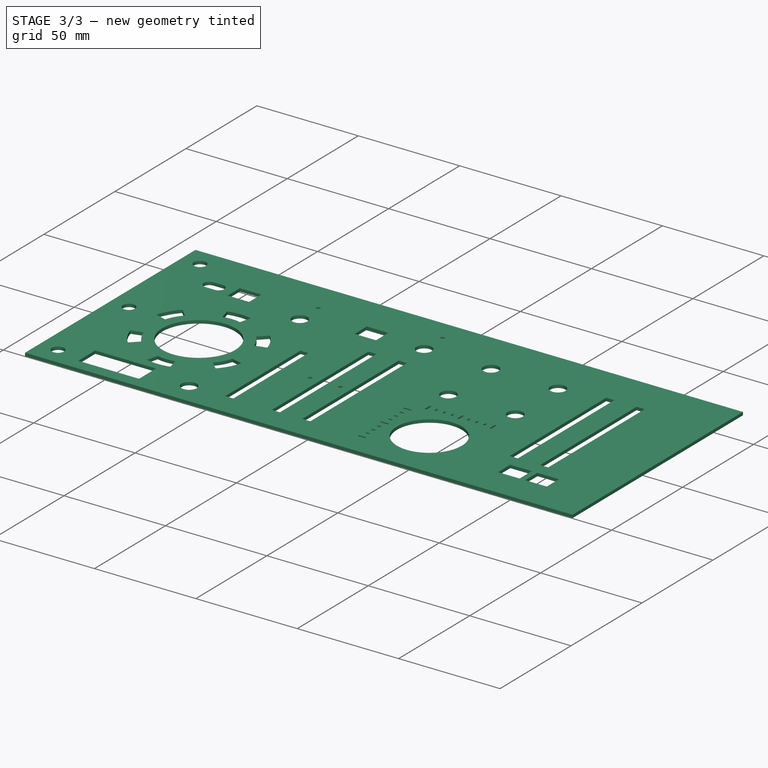
[diagram: stage 3 of 3 — iso view after this stage's code; geometry added in this stage tinted green]
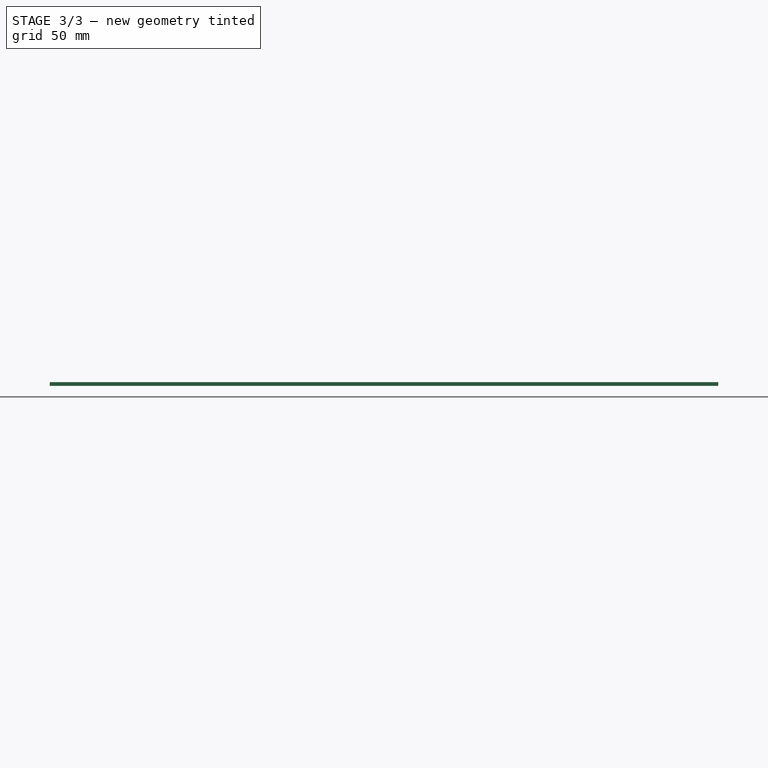
[diagram: stage 3 of 3 — front view after this stage's code; geometry added in this stage tinted green]
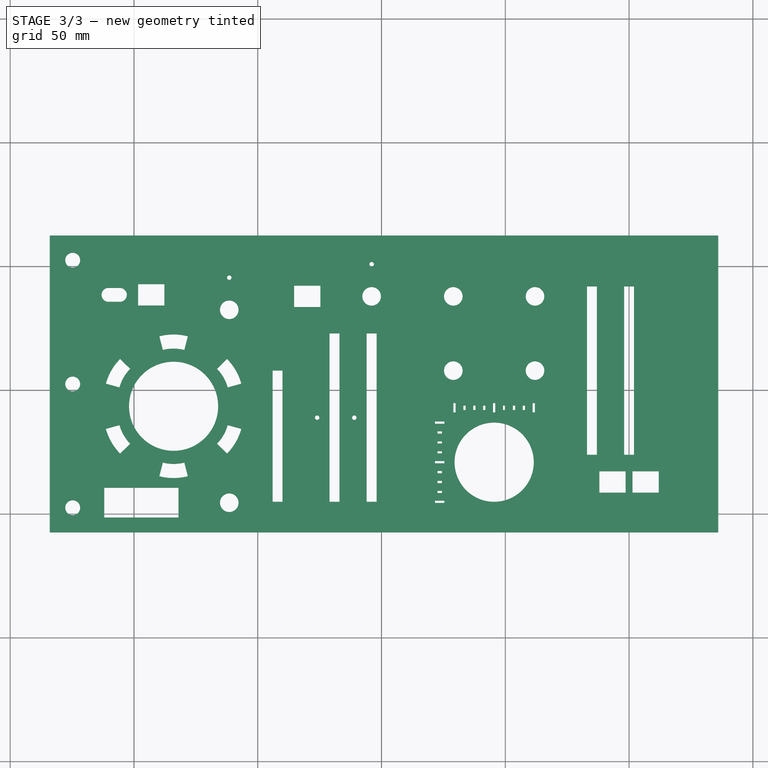
[diagram: stage 3 of 3 — top view after this stage's code; geometry added in this stage tinted green]
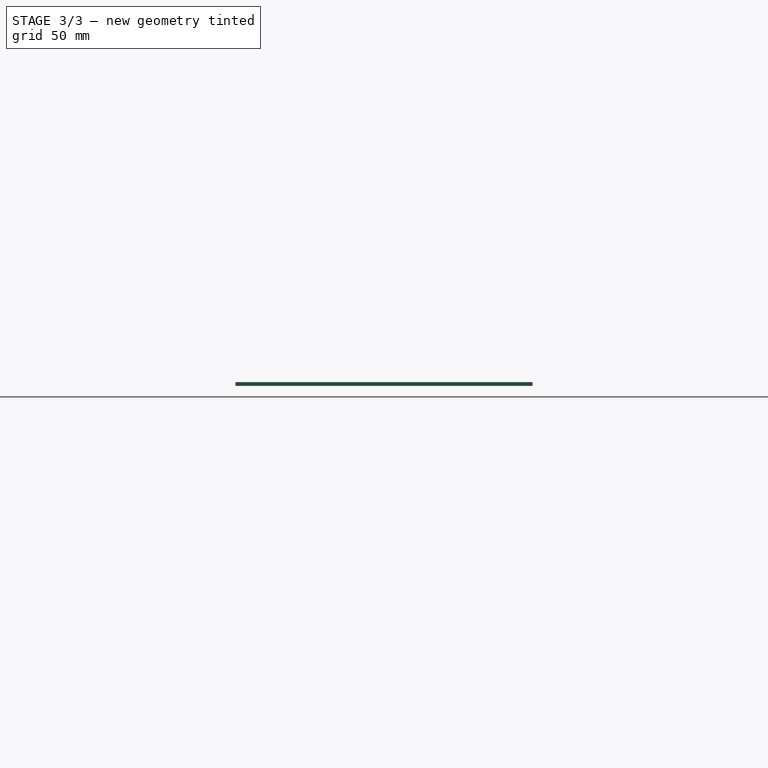
[diagram: stage 3 of 3 — right view after this stage's code; geometry added in this stage tinted green]
FEATURE [PartDesign::CoordinateSystem] Local_CS
  AttacherType = Attacher::AttachEngine3D
  MapMode = 11
  Placement = pos=(-84,-6.5,1.5) rot=(0,0,1;1.5708rad)
FEATURE [Sketcher::SketchObject] Sketch005
  MapMode = 5
  Placement = pos=(0,0,1.5) rot=(0,0,1;0rad)
  Support = -> [Pocket001]
FEATURE [PartDesign::Plane] DatumPlane001
  Length = 306
  MapMode = 5
  Placement = pos=(0,0,1.5) rot=(0,0,1;0rad)
  ResizeMode = 0
  Support = -> [Pocket001]
  Width = 156
FEATURE [Sketcher::SketchObject] Sketch006
  ExternalGeometry = -> [Pocket001]
  MapMode = 5
  Placement = pos=(0,0,1.5) rot=(0,0,1;0rad)
  Support = -> [DatumPlane001]
  sketch-geometry (9):
    g0: ArcOfCircle CenterX=-84 CenterY=-0.5 CenterZ=0 NormalX=0 NormalY=0 NormalZ=1 AngleXU=0 Radius=23 StartAngle=1.31772 EndAngle=1.82387
    g1: ArcOfCircle CenterX=-84 CenterY=-0.5 CenterZ=0 NormalX=0 NormalY=0 NormalZ=1 AngleXU=0 Radius=17.3 StartAngle=1.31772 EndAngle=1.82387
    g2: LineSegment StartX=-89.7587 StartY=21.7674 StartZ=0 EndX=-88.3316 EndY=16.249 EndZ=0
    g3: LineSegment StartX=-78.2413 StartY=21.7674 StartZ=0 EndX=-79.6684 EndY=16.249 EndZ=0
    g4: LineSegment [constr] StartX=-88.3316 StartY=16.249 StartZ=0 EndX=-84 EndY=-0.5 EndZ=0
    g5: LineSegment [constr] StartX=-79.6684 StartY=16.249 StartZ=0 EndX=-84 EndY=-0.5 EndZ=0
    g6: LineSegment [constr] StartX=-88.3316 StartY=16.249 StartZ=0 EndX=-84 EndY=16.249 EndZ=0
    g7: LineSegment [constr] StartX=-84 StartY=16.249 StartZ=0 EndX=-79.6684 EndY=16.249 EndZ=0
    g8: LineSegment [constr] StartX=-84 StartY=-6.5 StartZ=0 EndX=-84 EndY=-0.5 EndZ=0
  constraints (24):
    c: Coincident(g1,g0)
    c: Coincident(g2,g0)
    c: Coincident(g2,g1)
    c: Coincident(g4,g1)
    c: Coincident(g4,g0)
    c: Coincident(g5,g0)
    c: Coincident(g5,g1)
    c: Coincident(g3,g1)
    c: Coincident(g0,g3)
    c: Distance(g3) = 5.7
    c: Parallel(g2,g4)
    c: Parallel(g3,g5)
    c: Coincident(g6,g7)
    c: Equal(g6,g7)
    c: Horizontal(g6)
    c: Horizontal(g7)
    c: Coincident(g6,g1)
    c: Coincident(g7,g1)
    c: Distance(g5) = 17.3
    c: Angle(g5,g4) = 0.506145
    c: DistanceY(g-3,g0) = 6
    c: Vertical(g8)
    c: Coincident(g8,g0)
    c: Coincident(g8,g-3)
FEATURE [PartDesign::Pocket] Pocket002  label="AussparungCirc"
  BaseFeature = -> Pocket001
  Length = 5
  Length2 = 100
  Placement = pos=(0,0,1.5) rot=(0,0,1;0rad)
  Profile = -> Sketch006
  Type = 0
FEATURE [PartDesign::Line] DatumLine  label="colorAchse"
  AttacherType = Attacher::AttachEngineLine
  MapMode = 19
  Placement = pos=(-84,-6.5,1.5) rot=(0,0,1;0rad)
  Support = -> [Pocket002]
FEATURE [PartDesign::PolarPattern] PolarPattern
  Angle = 360
  Axis = -> DatumLine
  BaseFeature = -> Pocket002
  Occurrences = 6
  Originals = -> [Pocket002]
  Placement = pos=(0,0,1.5) rot=(0,0,1;0rad)
FEATURE [PartDesign::Body] Body
  Group = -> [DatumPlane,Sketch,Pad,Sketch001,Pad001,Sketch002,Hole,Sketch003,Pocket,Sketch004,Pocket001,Local_CS,Sketch005,DatumPlane001,Sketch006,Pocket002,DatumLine,PolarPattern]
  Origin = -> Origin
  Tip = -> PolarPattern
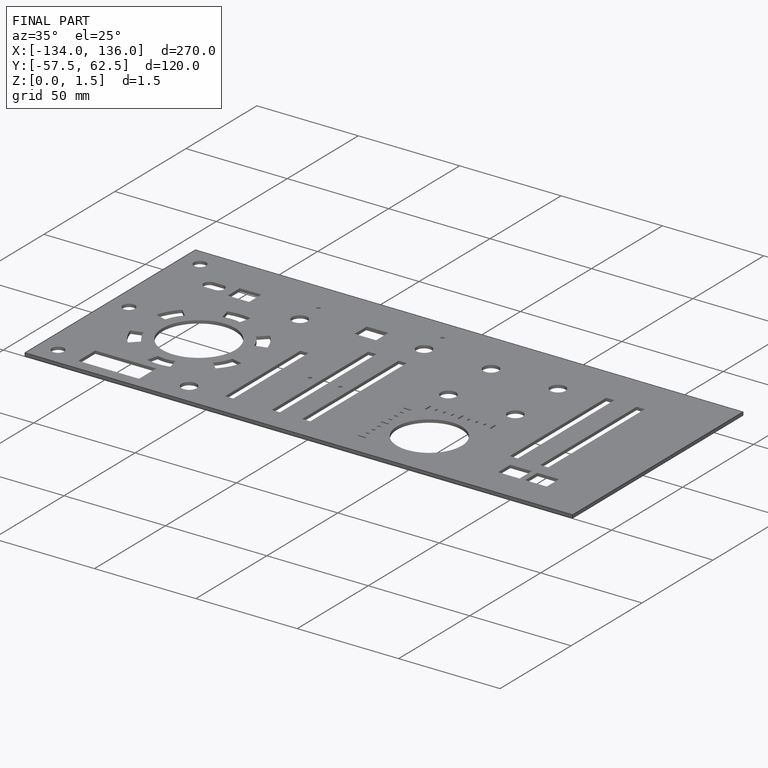
[diagram: finished part — iso view with bounding-box wireframe]
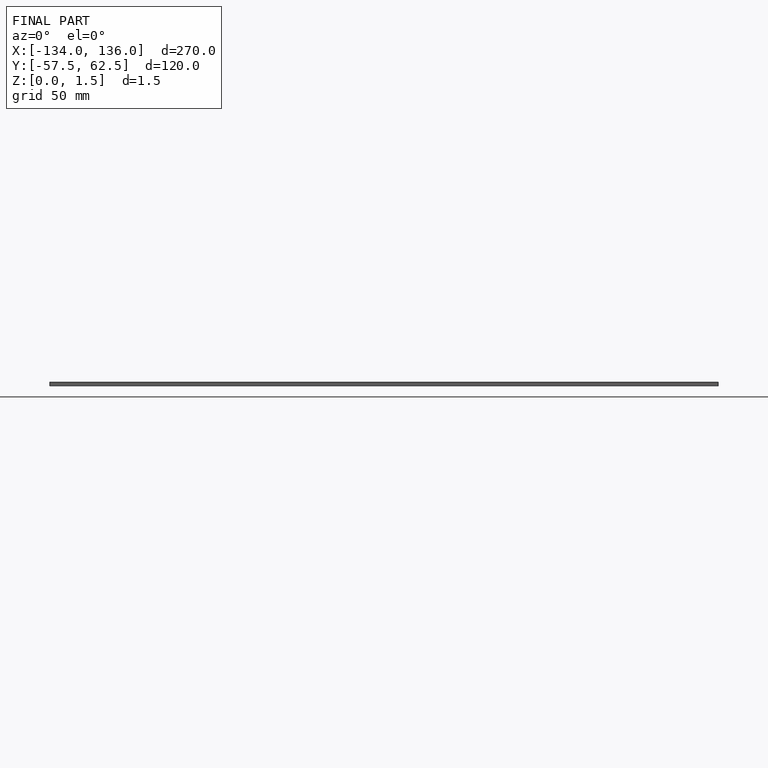
[diagram: finished part — front view with bounding-box wireframe]
